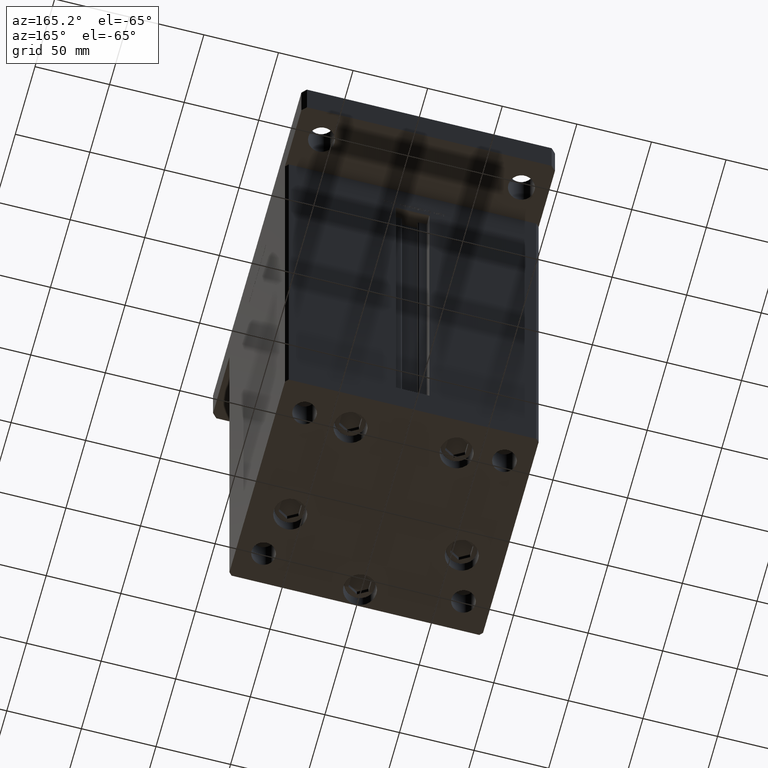
[diagram: clean part render]
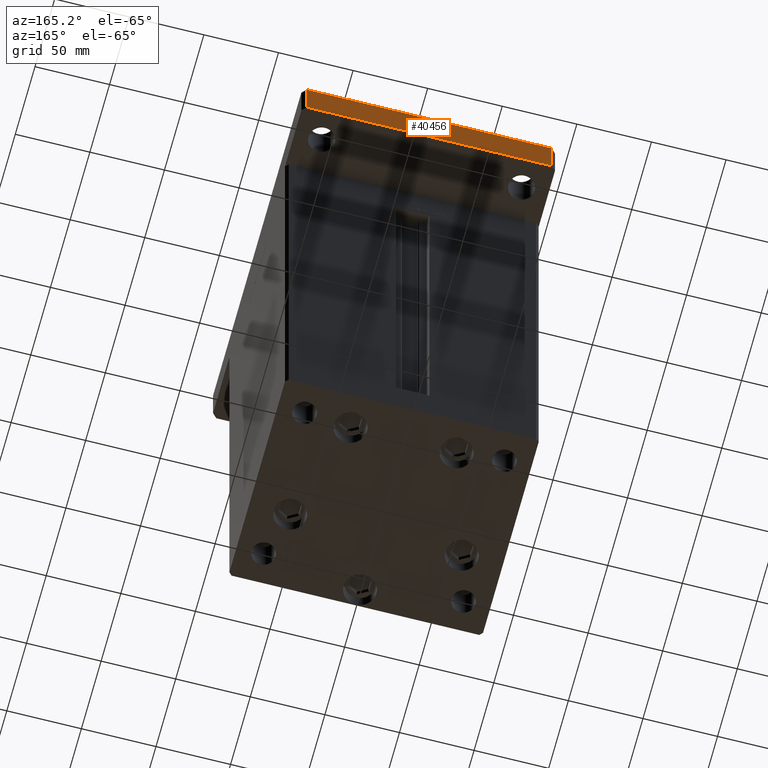
[diagram: same view with one face highlighted and labeled with its STEP entity id]
A machine part, auxiliary view. The second image highlights one B-rep face of the part: STEP entity #40456.
In plain terms, the highlighted planar face has unit normal (0, -1, 0).
Its self-contained STEP definition (entity closure, byte-faithful):
#1181 = EDGE_LOOP ( 'NONE', ( #49783, #47536, #4031, #40926 ) ) ;
#1245 = LINE ( 'NONE', #1787, #5847 ) ;
#1787 = CARTESIAN_POINT ( 'NONE',  ( 82.00000000000004263, 115.0000000000000284, 0.000000000000000000 ) ) ;
#2418 = AXIS2_PLACEMENT_3D ( 'NONE', #11419, #47718, #19560 ) ;
#3537 = DIRECTION ( 'NONE',  ( -1.000000000000000000, -1.692413147294444984E-16, 0.000000000000000000 ) ) ;
#4031 = ORIENTED_EDGE ( 'NONE', *, *, #5091, .F. ) ;
#5091 = EDGE_CURVE ( 'NONE', #27539, #8822, #32259, .T. ) ;
#5847 = VECTOR ( 'NONE', #42401, 1000.000000000000000 ) ;
#7087 = FACE_OUTER_BOUND ( 'NONE', #1181, .T. ) ;
#8676 = CARTESIAN_POINT ( 'NONE',  ( 82.00000000000004263, 115.0000000000000284, 27.00000000000000000 ) ) ;
#8822 = VERTEX_POINT ( 'NONE', #47287 ) ;
#9222 = VERTEX_POINT ( 'NONE', #42010 ) ;
#11419 = CARTESIAN_POINT ( 'NONE',  ( 82.00000000000004263, 115.0000000000000284, 27.00000000000000000 ) ) ;
#13414 = CARTESIAN_POINT ( 'NONE',  ( 82.00000000000004263, 115.0000000000000284, 27.00000000000000000 ) ) ;
#13680 = DIRECTION ( 'NONE',  ( -0.000000000000000000, -0.000000000000000000, -1.000000000000000000 ) ) ;
#18757 = PLANE ( 'NONE',  #2418 ) ;
#19560 = DIRECTION ( 'NONE',  ( 1.000000000000000000, 1.692413147294444984E-16, 0.000000000000000000 ) ) ;
#25027 = EDGE_CURVE ( 'NONE', #28172, #9222, #1245, .T. ) ;
#25929 = VECTOR ( 'NONE', #13680, 1000.000000000000000 ) ;
#27539 = VERTEX_POINT ( 'NONE', #51918 ) ;
#28172 = VERTEX_POINT ( 'NONE', #42601 ) ;
#29331 = DIRECTION ( 'NONE',  ( -0.000000000000000000, -0.000000000000000000, -1.000000000000000000 ) ) ;
#32259 = LINE ( 'NONE', #8676, #43537 ) ;
#33677 = LINE ( 'NONE', #45847, #40597 ) ;
#37785 = LINE ( 'NONE', #13414, #25929 ) ;
#40456 = ADVANCED_FACE ( 'NONE', ( #7087 ), #18757, .F. ) ;
#40597 = VECTOR ( 'NONE', #29331, 1000.000000000000000 ) ;
#40926 = ORIENTED_EDGE ( 'NONE', *, *, #44859, .T. ) ;
#42010 = CARTESIAN_POINT ( 'NONE',  ( -82.00000000000002842, 115.0000000000000000, 0.000000000000000000 ) ) ;
#42401 = DIRECTION ( 'NONE',  ( -1.000000000000000000, -1.692413147294444984E-16, 0.000000000000000000 ) ) ;
#42601 = CARTESIAN_POINT ( 'NONE',  ( 82.00000000000004263, 115.0000000000000284, 0.000000000000000000 ) ) ;
#43537 = VECTOR ( 'NONE', #3537, 1000.000000000000000 ) ;
#44859 = EDGE_CURVE ( 'NONE', #27539, #28172, #37785, .T. ) ;
#45173 = EDGE_CURVE ( 'NONE', #8822, #9222, #33677, .T. ) ;
#45847 = CARTESIAN_POINT ( 'NONE',  ( -82.00000000000002842, 115.0000000000000000, 27.00000000000000000 ) ) ;
#47287 = CARTESIAN_POINT ( 'NONE',  ( -82.00000000000002842, 115.0000000000000000, 27.00000000000000000 ) ) ;
#47536 = ORIENTED_EDGE ( 'NONE', *, *, #45173, .F. ) ;
#47718 = DIRECTION ( 'NONE',  ( 1.692413147294444984E-16, -1.000000000000000000, 0.000000000000000000 ) ) ;
#49783 = ORIENTED_EDGE ( 'NONE', *, *, #25027, .T. ) ;
#51918 = CARTESIAN_POINT ( 'NONE',  ( 82.00000000000004263, 115.0000000000000284, 27.00000000000000000 ) ) ;